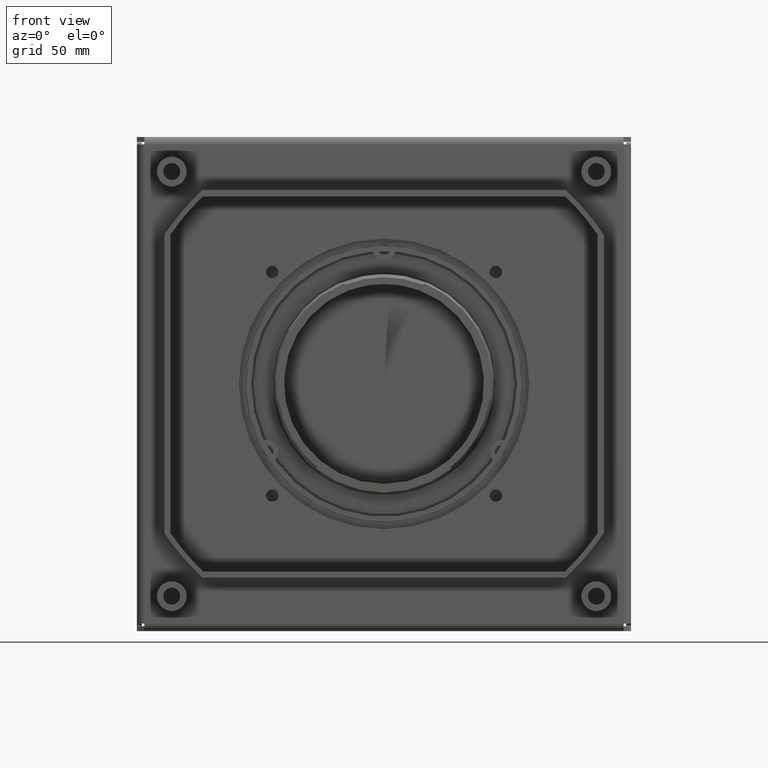
[diagram: clean part render]
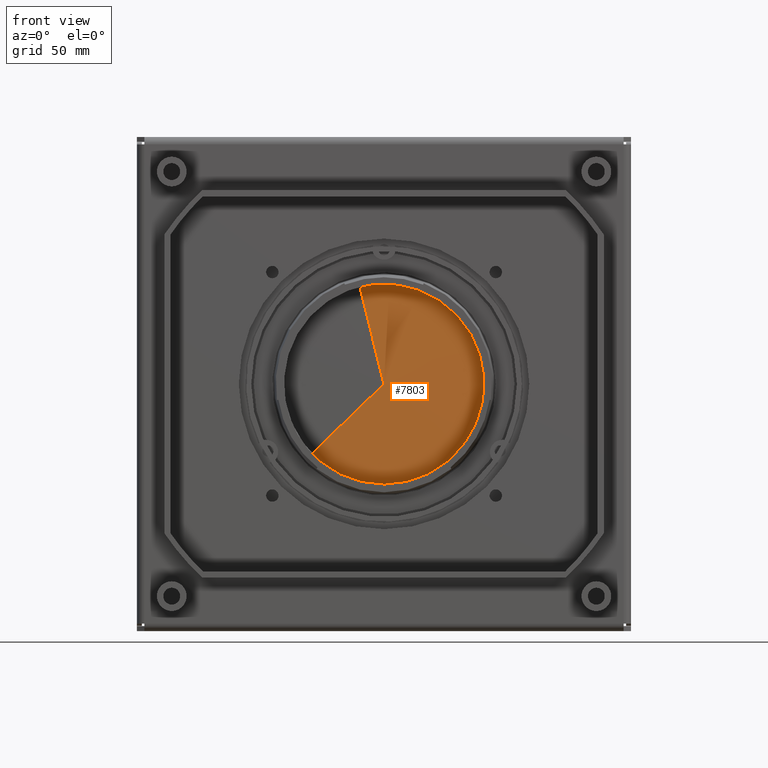
[diagram: same view with one face highlighted and labeled with its STEP entity id]
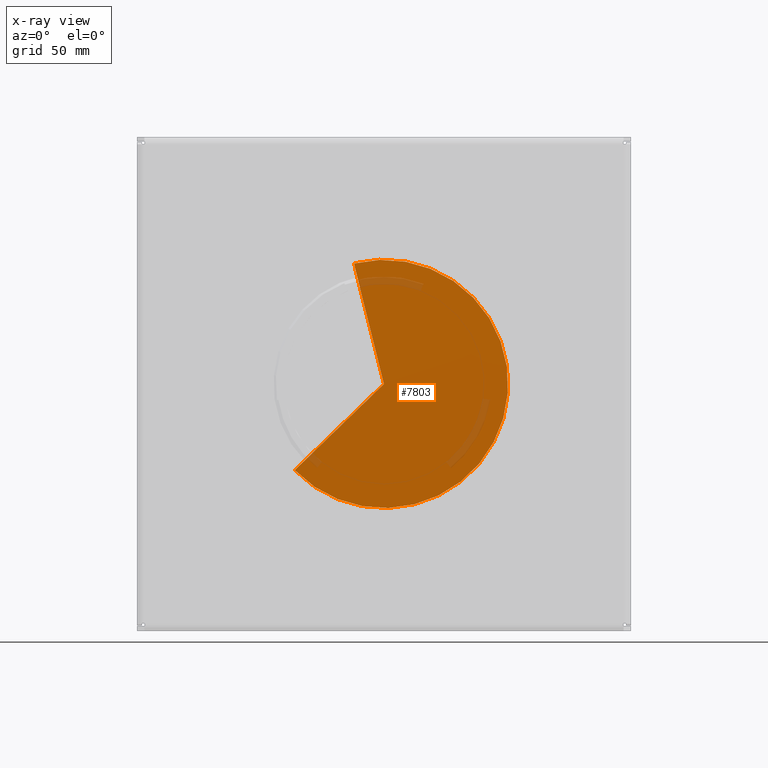
[diagram: x-ray of the same camera — body ghosted, the highlighted face saturated]
A machine part, front view. The second image highlights one B-rep face of the part: STEP entity #7803.
The next image is the same camera in x-ray: the body ghosted, the highlighted face saturated — about 4% of this face is hidden behind the body in this view.
In plain terms, the highlighted conical surface has half-angle 89.771 deg.
Its self-contained STEP definition (entity closure, byte-faithful):
#7691=DIRECTION('',(-9.999920000960E-1,3.999968000384E-3,0.E0));
#7692=VECTOR('',#7691,5.000039999840E1);
#7693=CARTESIAN_POINT('',(5.E1,2.E0,-5.805884166713E-14));
#7694=LINE('',#7693,#7692);
#7698=CARTESIAN_POINT('',(0.E0,2.E0,0.E0));
#7699=DIRECTION('',(0.E0,-1.E0,0.E0));
#7700=DIRECTION('',(1.E0,0.E0,0.E0));
#7701=AXIS2_PLACEMENT_3D('',#7698,#7699,#7700);
#7706=DIRECTION('',(4.999960000480E-1,3.999968000384E-3,8.660184756643E-1));
#7707=VECTOR('',#7706,5.000039999840E1);
#7708=CARTESIAN_POINT('',(-2.5E1,2.E0,-4.330127018922E1));
#7709=LINE('',#7708,#7707);
#7729=CARTESIAN_POINT('',(5.E1,2.E0,-5.805884166713E-14));
#7730=CARTESIAN_POINT('',(0.E0,2.2E0,0.E0));
#7731=VERTEX_POINT('',#7729);
#7732=VERTEX_POINT('',#7730);
#7733=CARTESIAN_POINT('',(-2.5E1,2.E0,-4.330127018922E1));
#7734=VERTEX_POINT('',#7733);
#7791=CARTESIAN_POINT('',(0.E0,2.098E0,0.E0));
#7792=DIRECTION('',(0.E0,-1.E0,0.E0));
#7793=DIRECTION('',(-1.E0,0.E0,0.E0));
#7794=AXIS2_PLACEMENT_3D('',#7791,#7792,#7793);
#7795=CONICAL_SURFACE('',#7794,2.55E1,8.977081810425E1);
#7797=ORIENTED_EDGE('',*,*,#7796,.F.);
#7798=ORIENTED_EDGE('',*,*,#7784,.T.);
#7800=ORIENTED_EDGE('',*,*,#7799,.T.);
#7801=EDGE_LOOP('',(#7797,#7798,#7800));
#7802=FACE_OUTER_BOUND('',#7801,.F.);
#7702=CIRCLE('',#7701,5.E1);
#7784=EDGE_CURVE('',#7731,#7734,#7702,.T.);
#7796=EDGE_CURVE('',#7731,#7732,#7694,.T.);
#7799=EDGE_CURVE('',#7734,#7732,#7709,.T.);
#7803=ADVANCED_FACE('',(#7802),#7795,.T.);